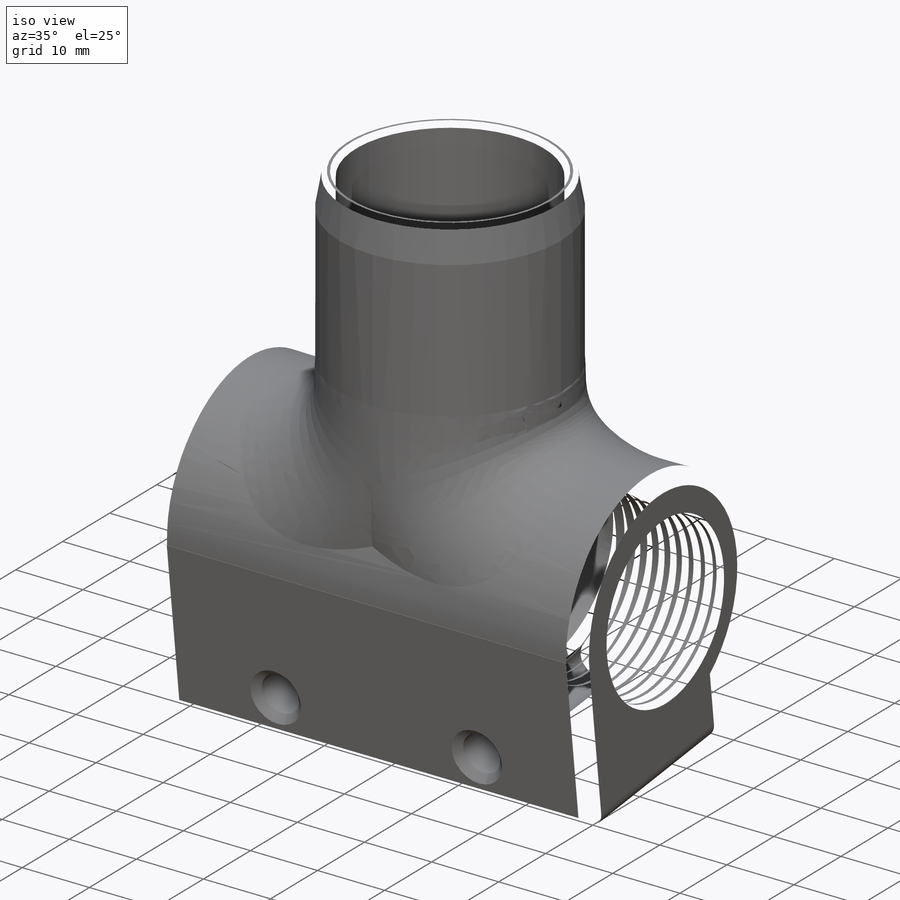
[diagram: iso view]
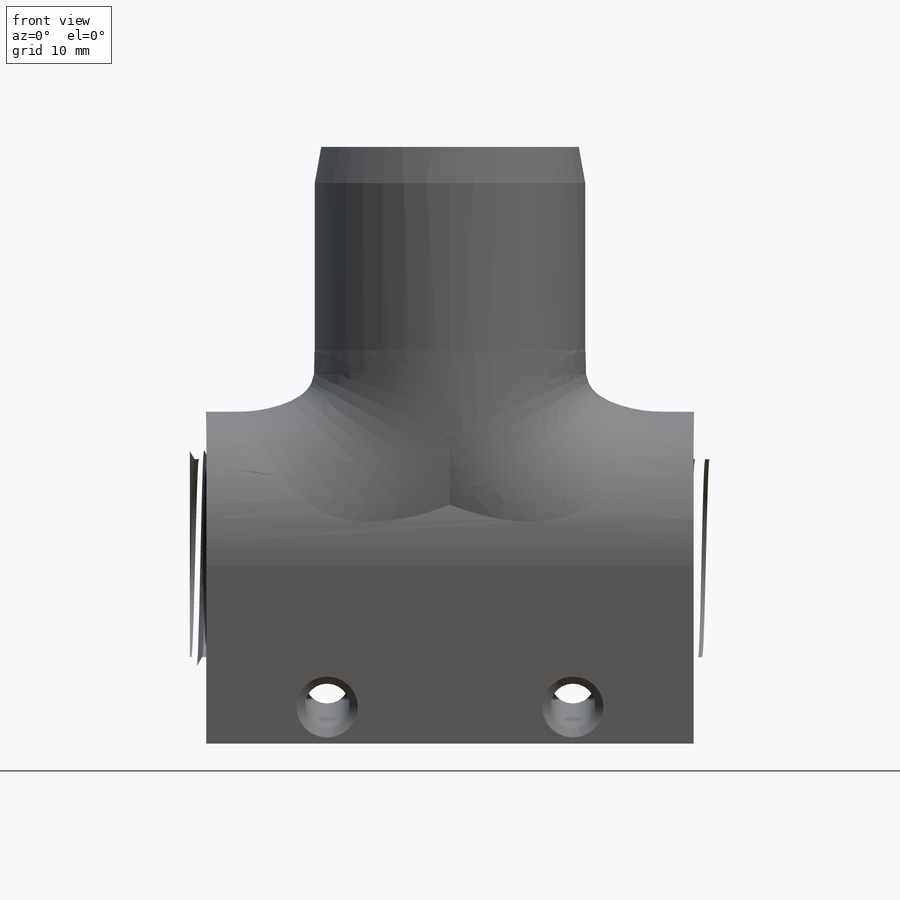
[diagram: front view]
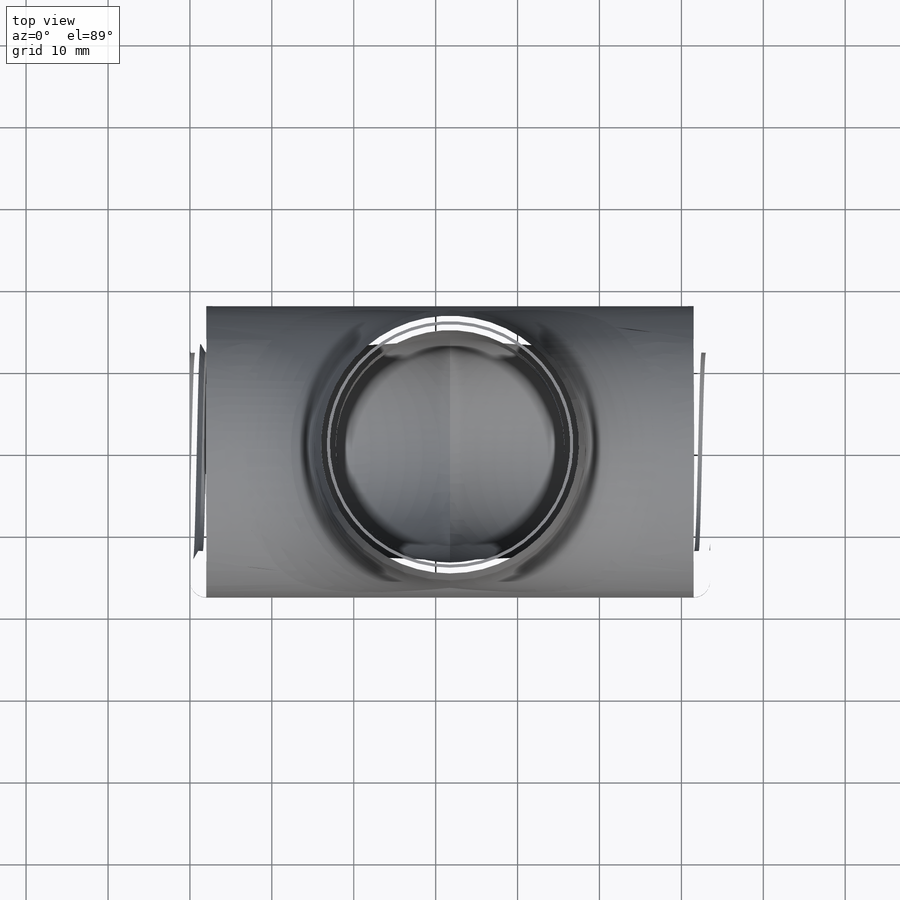
[diagram: top view]
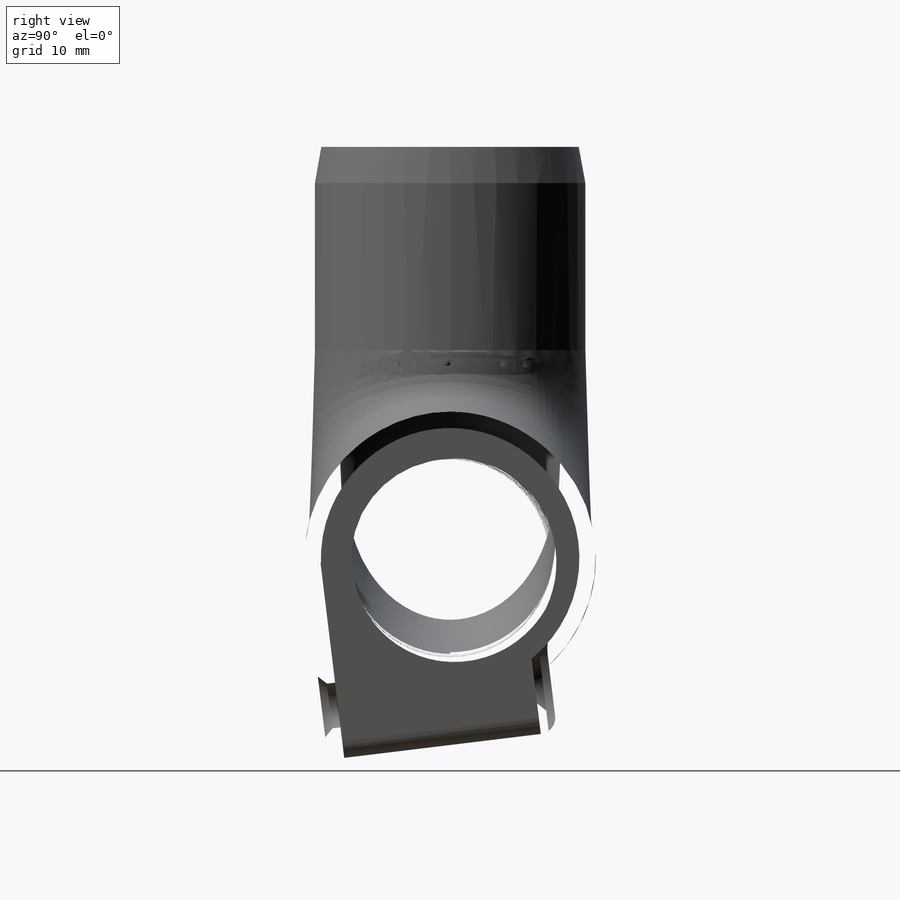
[diagram: right view]
SOLIDWORKS PART (.sldprt)
format: sldprt  version: not decoded by parser v0  size: 1,495,552 bytes
history: native  units: mm
features: sketch x22, fillet x8, extrude x4, plane x3, cut_extrude x3, chamfer x2, helix x2, sweep x2, material x1 (+11 scaffold rows collapsed)
feature tree (58):
  scaffold x11  (default folders/planes/origin — collapsed)
  material  "Material <not specified>"
  sketch  "Sketch1"  dims[D1=14.605mm]
  plane  "Plane1"  Offset=63.5mm
  sketch  "Sketch2"  dims[D1=0.7mm]
  plane  "Plane2"  Offset=25.4mm
  sketch  "Sketch3"  dims[D1=21.0mm]
  sketch  "Sketch4"
  extrude  "Boss-Extrude1"  Depth=63.5mm
  sketch  "Sketch2<5>"
  sketch  "Sketch3<6>"
  sketch  "Sketch4<7>"
  sketch  "Sketch3<5>"
  sketch  "Sketch2<6>"
  sketch  "Sketch4<6>"
  cut_extrude  "Cut-Loft2"  [1 undecoded]
  sketch  "Sketch3<7>"
  sketch  "Sketch1<5>"
  sketch  "Sketch4<8>"
  plane  "Plane3"
  sketch  "Sketch6"  dims[D1=24.0mm]
  extrude  "Boss-Extrude2"  Depth=2mm
  extrude  "Boss-Extrude3"  [1 undecoded]
  sketch  "Sketch3<8>"  dims[D1=25.4mm]
  sketch  "Sketch11"  dims[D1=25.0mm]
  extrude  "Boss-Extrude7"  Depth=25.4mm
  fillet  "Fillet4"  Radius=2mm
  sketch  "Sketch12"  dims[c1.D1=~1.838237mm c1.D3=2.6mm c2.D1=6.5mm c2.D2=15.0mm]
  cut_extrude  "Cut-Extrude1"  [1 undecoded]
  sketch  "Sketch13"  dims[D1=6.75mm]
  cut_extrude  "Cut-Extrude2"  Depth=1mm
  chamfer  "Chamfer1"  Distance=1mm Angle=45deg
  chamfer  "Chamfer2"  Distance=5mm Angle=10deg
  sketch  "Sketch14"  dims[c1.D1=~2.217686mm c2.D1=300.0deg c2.D2=~2.777606mm c3.D2=300.0deg c3.D3=3.0mm c3.D4=13.2mm]
  sketch  "Sketch15"  dims[D1=~12.655833mm]
  helix  "Helix/Spiral1"  Pitch=18.142857mm
  sweep  "Cut-Sweep1"
  sketch  "Sketch16"  dims[D1=~12.013881mm]
  helix  "Helix/Spiral2"  Pitch=18.142857mm
  sketch  "Sketch17"  dims[c1.D1=~1.19916mm c2.D1=300.0deg c2.D2=3.0mm c2.D3=~1.693771mm c3.D3=300.0deg c3.D4=13.2mm]
  sweep  "Cut-Sweep2"
  fillet  "Fillet6"  Radius=2mm
  fillet  "Fillet7"  Radius=7mm
  fillet  "Fillet11"  Radius=1mm
  fillet  "Fillet12"  Radius=2mm
  fillet  "Fillet14"  Radius=0.7mm
  fillet  "Fillet16"  Radius=2mm
  fillet  "Fillet18"  Radius=2mm
decode coverage: 28 of 43 modeling features carry decoded parameters
note: ~ marks probable driven/reference dimensions
note: 3 parameter values undecoded
summary: no parameter record found for 3 features
note: suppression state not decoded; provenance and decode notes live in map.json
